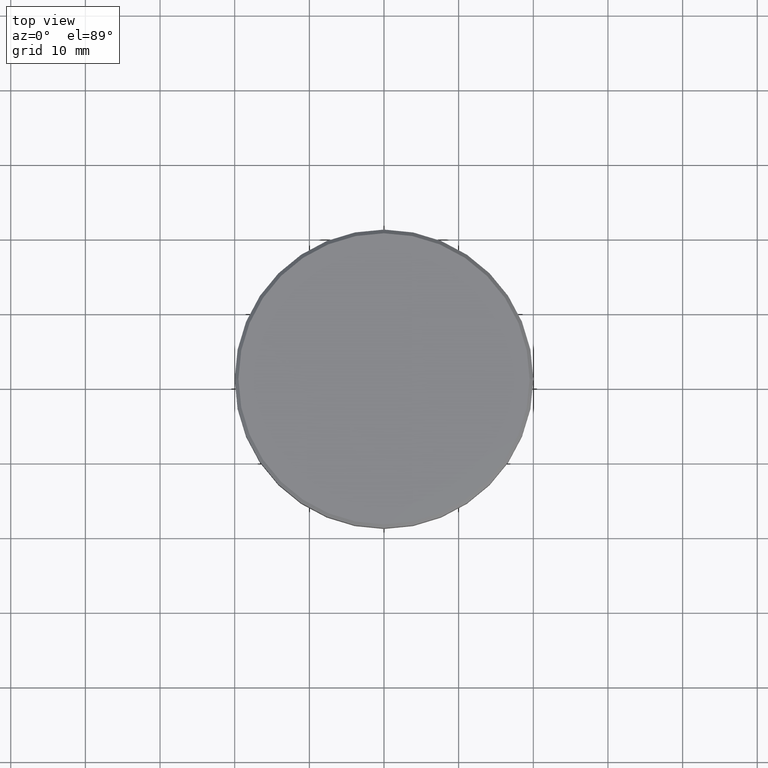
[diagram: clean part render]
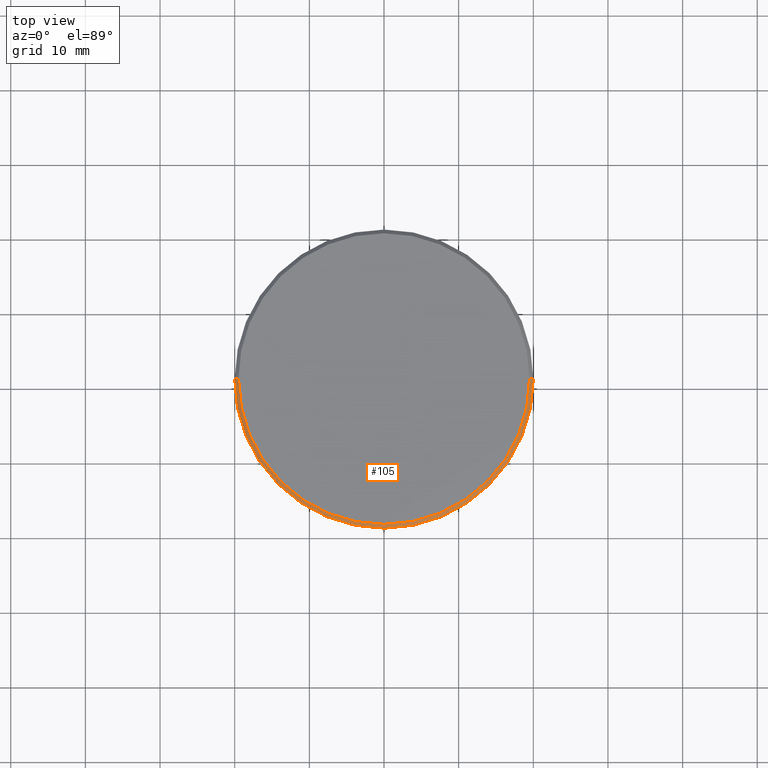
[diagram: same view with one face highlighted and labeled with its STEP entity id]
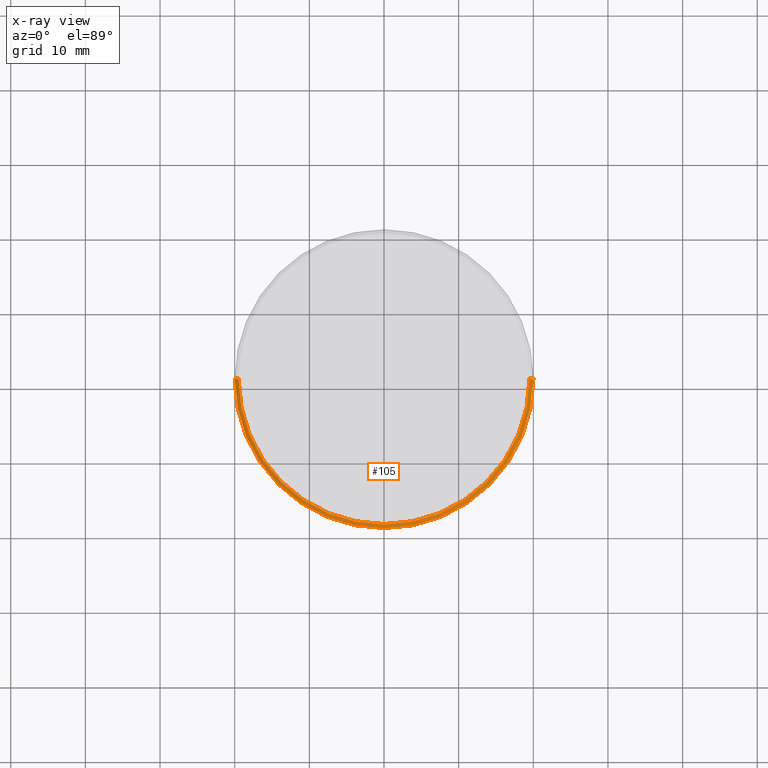
[diagram: x-ray of the same camera — body ghosted, the highlighted face saturated]
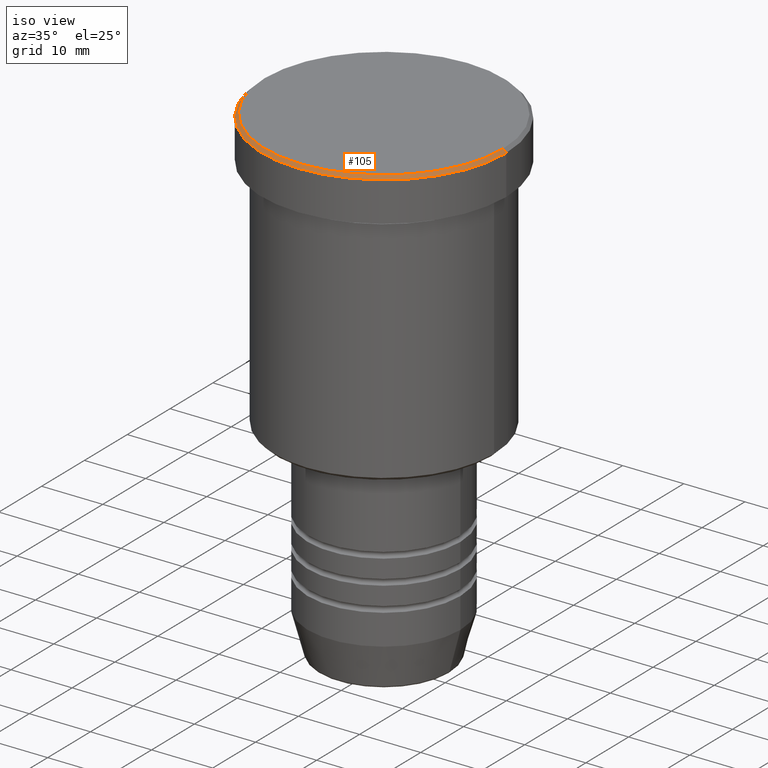
[diagram: same view with one face highlighted and labeled with its STEP entity id]
A machine part, top view. The second image highlights one B-rep face of the part: STEP entity #105.
The next image is the same camera in x-ray: the body ghosted, the highlighted face saturated — about 0% of this face is hidden behind the body in this view.
A second angle (iso view) of the same face is appended — the face is thin or edge-on in the first view.
In plain terms, the highlighted conical surface has half-angle 45 deg.
Its self-contained STEP definition (entity closure, byte-faithful):
#24 = DIRECTION ( 'NONE',  ( 0.000000000000000000, 0.000000000000000000, -1.000000000000000000 ) ) ;
#33 = ORIENTED_EDGE ( 'NONE', *, *, #708, .F. ) ;
#36 = DIRECTION ( 'NONE',  ( 0.000000000000000000, 0.000000000000000000, -1.000000000000000000 ) ) ;
#55 = CARTESIAN_POINT ( 'NONE',  ( 0.000000000000000000, 0.000000000000000000, 0.000000000000000000 ) ) ;
#70 = EDGE_CURVE ( 'NONE', #730, #471, #750, .T. ) ;
#77 = ORIENTED_EDGE ( 'NONE', *, *, #1096, .F. ) ;
#90 = CARTESIAN_POINT ( 'NONE',  ( -20.00000000000000000, 2.449293598294706513E-15, -0.4999999999999970024 ) ) ;
#105 = ADVANCED_FACE ( 'NONE', ( #864 ), #1072, .T. ) ;
#175 = ORIENTED_EDGE ( 'NONE', *, *, #457, .T. ) ;
#187 = CARTESIAN_POINT ( 'NONE',  ( 19.50000000000000355, 2.418677428316022726E-15, 0.000000000000000000 ) ) ;
#280 = DIRECTION ( 'NONE',  ( -0.7071067811865474617, 0.000000000000000000, -0.7071067811865474617 ) ) ;
#292 = VECTOR ( 'NONE', #280, 1000.000000000000114 ) ;
#310 = CARTESIAN_POINT ( 'NONE',  ( 19.50000000000000355, 2.388061258337339333E-15, 0.000000000000000000 ) ) ;
#317 = CIRCLE ( 'NONE', #909, 19.50000000000000355 ) ;
#339 = EDGE_LOOP ( 'NONE', ( #33, #77, #175, #753 ) ) ;
#365 = LINE ( 'NONE', #720, #292 ) ;
#399 = DIRECTION ( 'NONE',  ( 1.000000000000000000, 0.000000000000000000, 0.000000000000000000 ) ) ;
#402 = LINE ( 'NONE', #310, #1087 ) ;
#457 = EDGE_CURVE ( 'NONE', #778, #471, #365, .T. ) ;
#471 = VERTEX_POINT ( 'NONE', #90 ) ;
#475 = VERTEX_POINT ( 'NONE', #187 ) ;
#485 = CARTESIAN_POINT ( 'NONE',  ( 0.000000000000000000, 0.000000000000000000, -0.4999999999999970024 ) ) ;
#519 = CARTESIAN_POINT ( 'NONE',  ( -19.50000000000000355, 0.000000000000000000, 0.000000000000000000 ) ) ;
#594 = DIRECTION ( 'NONE',  ( 0.7071067811865474617, 8.659560562354932858E-17, -0.7071067811865474617 ) ) ;
#619 = AXIS2_PLACEMENT_3D ( 'NONE', #485, #24, #399 ) ;
#708 = EDGE_CURVE ( 'NONE', #475, #730, #402, .T. ) ;
#720 = CARTESIAN_POINT ( 'NONE',  ( -19.50000000000000355, 0.000000000000000000, 0.000000000000000000 ) ) ;
#730 = VERTEX_POINT ( 'NONE', #950 ) ;
#750 = CIRCLE ( 'NONE', #619, 20.00000000000000000 ) ;
#753 = ORIENTED_EDGE ( 'NONE', *, *, #70, .F. ) ;
#778 = VERTEX_POINT ( 'NONE', #519 ) ;
#781 = DIRECTION ( 'NONE',  ( -1.000000000000000000, 0.000000000000000000, 0.000000000000000000 ) ) ;
#863 = CARTESIAN_POINT ( 'NONE',  ( 0.000000000000000000, 0.000000000000000000, 0.000000000000000000 ) ) ;
#864 = FACE_OUTER_BOUND ( 'NONE', #339, .T. ) ;
#871 = AXIS2_PLACEMENT_3D ( 'NONE', #55, #36, #781 ) ;
#909 = AXIS2_PLACEMENT_3D ( 'NONE', #863, #1120, #1130 ) ;
#950 = CARTESIAN_POINT ( 'NONE',  ( 20.00000000000000000, 0.000000000000000000, -0.4999999999999970024 ) ) ;
#1072 = CONICAL_SURFACE ( 'NONE', #871, 19.50000000000000355, 0.7853981633974482790 ) ;
#1087 = VECTOR ( 'NONE', #594, 1000.000000000000114 ) ;
#1096 = EDGE_CURVE ( 'NONE', #778, #475, #317, .T. ) ;
#1120 = DIRECTION ( 'NONE',  ( -0.000000000000000000, -0.000000000000000000, 1.000000000000000000 ) ) ;
#1130 = DIRECTION ( 'NONE',  ( 1.000000000000000000, 0.000000000000000000, 0.000000000000000000 ) ) ;